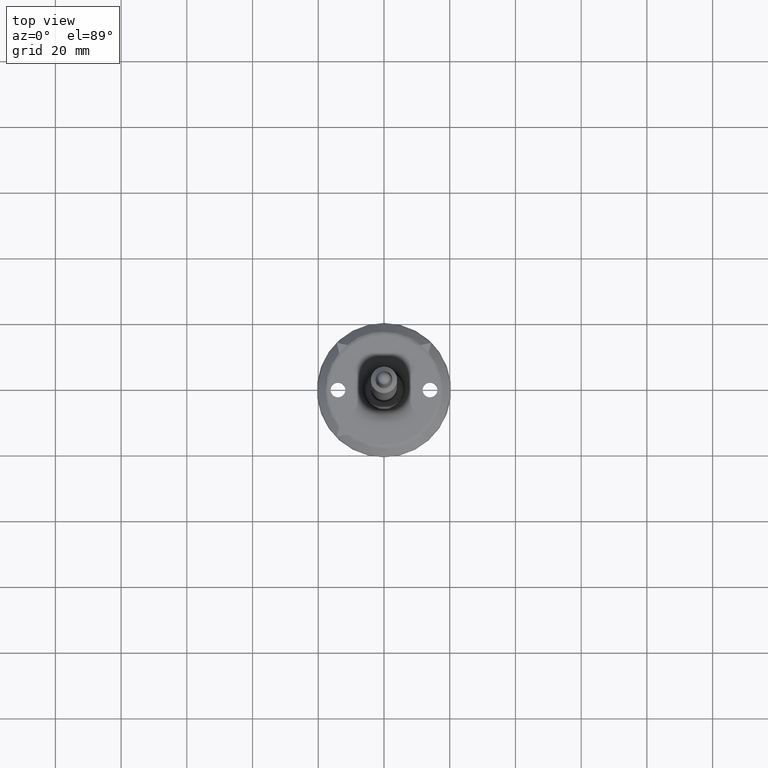
[diagram: clean part render]
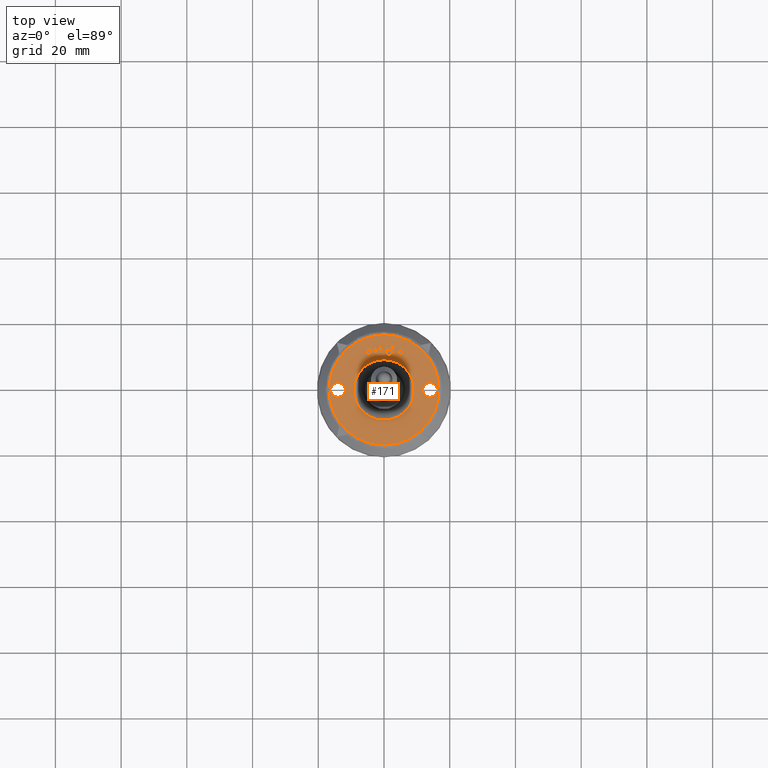
[diagram: same view with one face highlighted and labeled with its STEP entity id]
A machine part, top view. The second image highlights one B-rep face of the part: STEP entity #171.
In plain terms, the highlighted planar face has unit normal (0, -0, -1).
Its self-contained STEP definition (entity closure, byte-faithful):
#171 = ADVANCED_FACE( '', ( #294, #295, #296, #297, #298, #299, #300, #301, #302 ), #303, .F. );
#294 = FACE_BOUND( '', #582, .T. );
#295 = FACE_BOUND( '', #583, .T. );
#296 = FACE_BOUND( '', #584, .T. );
#297 = FACE_BOUND( '', #585, .T. );
#298 = FACE_OUTER_BOUND( '', #586, .T. );
#299 = FACE_BOUND( '', #587, .T. );
#300 = FACE_BOUND( '', #588, .T. );
#301 = FACE_BOUND( '', #589, .T. );
#302 = FACE_BOUND( '', #590, .T. );
#303 = PLANE( '', #591 );
#582 = EDGE_LOOP( '', ( #870, #871, #872, #873, #874, #875, #876, #877 ) );
#583 = EDGE_LOOP( '', ( #878, #879, #880, #881 ) );
#584 = EDGE_LOOP( '', ( #882 ) );
#585 = EDGE_LOOP( '', ( #883 ) );
#586 = EDGE_LOOP( '', ( #884 ) );
#587 = EDGE_LOOP( '', ( #885 ) );
#588 = EDGE_LOOP( '', ( #886, #887, #888, #889 ) );
#589 = EDGE_LOOP( '', ( #890, #891, #892, #893, #894, #895, #896 ) );
#590 = EDGE_LOOP( '', ( #897, #898, #899, #900, #901 ) );
#591 = AXIS2_PLACEMENT_3D( '', #902, #903, #904 );
#870 = ORIENTED_EDGE( '', *, *, #1774, .F. );
#871 = ORIENTED_EDGE( '', *, *, #1775, .F. );
#872 = ORIENTED_EDGE( '', *, *, #1776, .F. );
#873 = ORIENTED_EDGE( '', *, *, #1777, .F. );
#874 = ORIENTED_EDGE( '', *, *, #1778, .F. );
#875 = ORIENTED_EDGE( '', *, *, #1779, .F. );
#876 = ORIENTED_EDGE( '', *, *, #1780, .F. );
#877 = ORIENTED_EDGE( '', *, *, #1781, .F. );
#878 = ORIENTED_EDGE( '', *, *, #1782, .F. );
#879 = ORIENTED_EDGE( '', *, *, #1783, .F. );
#880 = ORIENTED_EDGE( '', *, *, #1784, .F. );
#881 = ORIENTED_EDGE( '', *, *, #1785, .F. );
#882 = ORIENTED_EDGE( '', *, *, #1786, .F. );
#883 = ORIENTED_EDGE( '', *, *, #1787, .T. );
#884 = ORIENTED_EDGE( '', *, *, #1788, .T. );
#885 = ORIENTED_EDGE( '', *, *, #1789, .F. );
#886 = ORIENTED_EDGE( '', *, *, #1790, .F. );
#887 = ORIENTED_EDGE( '', *, *, #1791, .F. );
#888 = ORIENTED_EDGE( '', *, *, #1792, .F. );
#889 = ORIENTED_EDGE( '', *, *, #1793, .F. );
#890 = ORIENTED_EDGE( '', *, *, #1794, .F. );
#891 = ORIENTED_EDGE( '', *, *, #1795, .F. );
#892 = ORIENTED_EDGE( '', *, *, #1796, .F. );
#893 = ORIENTED_EDGE( '', *, *, #1797, .F. );
#894 = ORIENTED_EDGE( '', *, *, #1798, .F. );
#895 = ORIENTED_EDGE( '', *, *, #1799, .F. );
#896 = ORIENTED_EDGE( '', *, *, #1800, .F. );
#897 = ORIENTED_EDGE( '', *, *, #1801, .F. );
#898 = ORIENTED_EDGE( '', *, *, #1802, .F. );
#899 = ORIENTED_EDGE( '', *, *, #1803, .F. );
#900 = ORIENTED_EDGE( '', *, *, #1804, .F. );
#901 = ORIENTED_EDGE( '', *, *, #1805, .F. );
#902 = CARTESIAN_POINT( '', ( 6.26367410396015, 1.30196443740726E-015, 4.99990699999999 ) );
#903 = DIRECTION( '', ( 1.12474554136660E-032, -1.83690953073357E-016, -1.00000000000000 ) );
#904 = DIRECTION( '', ( -6.12303176911189E-017, 1.00000000000000, -1.83690953073357E-016 ) );
#1774 = EDGE_CURVE( '', #2043, #2044, #2045, .F. );
#1775 = EDGE_CURVE( '', #2046, #2043, #2047, .T. );
#1776 = EDGE_CURVE( '', #2048, #2046, #2049, .T. );
#1777 = EDGE_CURVE( '', #2050, #2048, #2051, .T. );
#1778 = EDGE_CURVE( '', #2052, #2050, #2053, .T. );
#1779 = EDGE_CURVE( '', #2054, #2052, #2055, .T. );
#1780 = EDGE_CURVE( '', #2056, #2054, #2057, .T. );
#1781 = EDGE_CURVE( '', #2044, #2056, #2058, .T. );
#1782 = EDGE_CURVE( '', #2059, #2060, #2061, .T. );
#1783 = EDGE_CURVE( '', #2062, #2059, #2063, .T. );
#1784 = EDGE_CURVE( '', #2064, #2062, #2065, .T. );
#1785 = EDGE_CURVE( '', #2060, #2064, #2066, .T. );
#1786 = EDGE_CURVE( '', #2067, #2067, #2068, .F. );
#1787 = EDGE_CURVE( '', #2069, #2069, #2070, .T. );
#1788 = EDGE_CURVE( '', #2071, #2071, #2072, .F. );
#1789 = EDGE_CURVE( '', #2073, #2073, #2074, .F. );
#1790 = EDGE_CURVE( '', #2075, #2076, #2077, .T. );
#1791 = EDGE_CURVE( '', #2078, #2075, #2079, .T. );
#1792 = EDGE_CURVE( '', #2080, #2078, #2081, .T. );
#1793 = EDGE_CURVE( '', #2076, #2080, #2082, .T. );
#1794 = EDGE_CURVE( '', #2083, #2084, #2085, .T. );
#1795 = EDGE_CURVE( '', #2086, #2083, #2087, .T. );
#1796 = EDGE_CURVE( '', #2088, #2086, #2089, .T. );
#1797 = EDGE_CURVE( '', #2090, #2088, #2091, .T. );
#1798 = EDGE_CURVE( '', #2092, #2090, #2093, .T. );
#1799 = EDGE_CURVE( '', #2094, #2092, #2095, .T. );
#1800 = EDGE_CURVE( '', #2084, #2094, #2096, .T. );
#1801 = EDGE_CURVE( '', #2097, #2098, #2099, .T. );
#1802 = EDGE_CURVE( '', #2100, #2097, #2101, .T. );
#1803 = EDGE_CURVE( '', #2102, #2100, #2103, .T. );
#1804 = EDGE_CURVE( '', #2104, #2102, #2105, .T. );
#1805 = EDGE_CURVE( '', #2098, #2104, #2106, .T. );
#2043 = VERTEX_POINT( '', #2501 );
#2044 = VERTEX_POINT( '', #2502 );
#2045 = CIRCLE( '', #2503, 1.33440000000000 );
#2046 = VERTEX_POINT( '', #2504 );
#2047 = LINE( '', #2505, #2506 );
#2048 = VERTEX_POINT( '', #2507 );
#2049 = LINE( '', #2508, #2509 );
#2050 = VERTEX_POINT( '', #2510 );
#2051 = LINE( '', #2511, #2512 );
#2052 = VERTEX_POINT( '', #2513 );
#2053 = CIRCLE( '', #2514, 0.889599999999995 );
#2054 = VERTEX_POINT( '', #2515 );
#2055 = LINE( '', #2516, #2517 );
#2056 = VERTEX_POINT( '', #2518 );
#2057 = LINE( '', #2519, #2520 );
#2058 = LINE( '', #2521, #2522 );
#2059 = VERTEX_POINT( '', #2523 );
#2060 = VERTEX_POINT( '', #2524 );
#2061 = LINE( '', #2525, #2526 );
#2062 = VERTEX_POINT( '', #2527 );
#2063 = LINE( '', #2528, #2529 );
#2064 = VERTEX_POINT( '', #2530 );
#2065 = LINE( '', #2531, #2532 );
#2066 = LINE( '', #2533, #2534 );
#2067 = VERTEX_POINT( '', #2535 );
#2068 = CIRCLE( '', #2536, 2.25000000000001 );
#2069 = VERTEX_POINT( '', #2537 );
#2070 = CIRCLE( '', #2538, 9.20784984471370 );
#2071 = VERTEX_POINT( '', #2539 );
#2072 = CIRCLE( '', #2540, 16.7792036051656 );
#2073 = VERTEX_POINT( '', #2541 );
#2074 = CIRCLE( '', #2542, 2.25000000000000 );
#2075 = VERTEX_POINT( '', #2543 );
#2076 = VERTEX_POINT( '', #2544 );
#2077 = LINE( '', #2545, #2546 );
#2078 = VERTEX_POINT( '', #2547 );
#2079 = LINE( '', #2548, #2549 );
#2080 = VERTEX_POINT( '', #2550 );
#2081 = LINE( '', #2551, #2552 );
#2082 = LINE( '', #2553, #2554 );
#2083 = VERTEX_POINT( '', #2555 );
#2084 = VERTEX_POINT( '', #2556 );
#2085 = LINE( '', #2557, #2558 );
#2086 = VERTEX_POINT( '', #2559 );
#2087 = LINE( '', #2560, #2561 );
#2088 = VERTEX_POINT( '', #2562 );
#2089 = LINE( '', #2563, #2564 );
#2090 = VERTEX_POINT( '', #2565 );
#2091 = LINE( '', #2566, #2567 );
#2092 = VERTEX_POINT( '', #2568 );
#2093 = LINE( '', #2569, #2570 );
#2094 = VERTEX_POINT( '', #2571 );
#2095 = LINE( '', #2572, #2573 );
#2096 = LINE( '', #2574, #2575 );
#2097 = VERTEX_POINT( '', #2576 );
#2098 = VERTEX_POINT( '', #2577 );
#2099 = LINE( '', #2578, #2579 );
#2100 = VERTEX_POINT( '', #2580 );
#2101 = LINE( '', #2581, #2582 );
#2102 = VERTEX_POINT( '', #2583 );
#2103 = LINE( '', #2584, #2585 );
#2104 = VERTEX_POINT( '', #2586 );
#2105 = LINE( '', #2587, #2588 );
#2106 = LINE( '', #2589, #2590 );
#2501 = CARTESIAN_POINT( '', ( 4.28704891701152, 10.4994000000000, 4.99990699999999 ) );
#2502 = CARTESIAN_POINT( '', ( 5.62144891701152, 11.8338000000000, 4.99990699999999 ) );
#2503 = AXIS2_PLACEMENT_3D( '', #3291, #3292, #3293 );
#2504 = CARTESIAN_POINT( '', ( 2.88317879044305, 10.4994000000000, 4.99990699999999 ) );
#2505 = CARTESIAN_POINT( '', ( 6.26367410396015, 10.4994000000000, 4.99990699999999 ) );
#2506 = VECTOR( '', #3294, 1000.00000000000 );
#2507 = CARTESIAN_POINT( '', ( 3.11820689177645, 11.0811149637937, 4.99990699999999 ) );
#2508 = CARTESIAN_POINT( '', ( -0.289184012132563, 2.64752653307821, 4.99990699999999 ) );
#2509 = VECTOR( '', #3295, 1000.00000000000 );
#2510 = CARTESIAN_POINT( '', ( 3.68641509272283, 11.0811149637937, 4.99990699999999 ) );
#2511 = CARTESIAN_POINT( '', ( 6.26367410396015, 11.0811149637937, 4.99990699999999 ) );
#2512 = VECTOR( '', #3296, 1000.00000000000 );
#2513 = CARTESIAN_POINT( '', ( 4.57601509272282, 11.9707149637937, 4.99990699999999 ) );
#2514 = AXIS2_PLACEMENT_3D( '', #3297, #3298, #3299 );
#2515 = CARTESIAN_POINT( '', ( 4.57601509272282, 14.4996711815567, 4.99990699999999 ) );
#2516 = CARTESIAN_POINT( '', ( 4.57601509272282, 1.30109529971322E-015, 4.99990699999999 ) );
#2517 = VECTOR( '', #3300, 1000.00000000000 );
#2518 = CARTESIAN_POINT( '', ( 5.62144891701152, 14.4996711815567, 4.99990699999999 ) );
#2519 = CARTESIAN_POINT( '', ( 6.26367410396015, 14.4996711815567, 4.99990699999999 ) );
#2520 = VECTOR( '', #3301, 1000.00000000000 );
#2521 = CARTESIAN_POINT( '', ( 5.62144891701152, 1.30163369398437E-015, 4.99990699999999 ) );
#2522 = VECTOR( '', #3302, 1000.00000000000 );
#2523 = CARTESIAN_POINT( '', ( 0.302886043628969, 10.4994000000000, 4.99990699999999 ) );
#2524 = CARTESIAN_POINT( '', ( -1.31350139777566, 14.4996711815567, 4.99990699999999 ) );
#2525 = CARTESIAN_POINT( '', ( 4.78654673523565, -0.596862067544176, 4.99990699999999 ) );
#2526 = VECTOR( '', #3303, 1000.00000000000 );
#2527 = CARTESIAN_POINT( '', ( -0.730811096244652, 10.4994000000000, 4.99990699999999 ) );
#2528 = CARTESIAN_POINT( '', ( 6.26367410396015, 10.4994000000000, 4.99990699999999 ) );
#2529 = VECTOR( '', #3304, 1000.00000000000 );
#2530 = CARTESIAN_POINT( '', ( -2.34719853764928, 14.4996711815567, 4.99990699999999 ) );
#2531 = CARTESIAN_POINT( '', ( 3.89793511116535, -0.955922892234176, 4.99990699999999 ) );
#2532 = VECTOR( '', #3305, 1000.00000000000 );
#2533 = CARTESIAN_POINT( '', ( 6.26367410396015, 14.4996711815567, 4.99990699999999 ) );
#2534 = VECTOR( '', #3306, 1000.00000000000 );
#2535 = CARTESIAN_POINT( '', ( 14.0000000000000, 2.25000000000001, 4.99990699999999 ) );
#2536 = AXIS2_PLACEMENT_3D( '', #3307, #3308, #3309 );
#2537 = CARTESIAN_POINT( '', ( -5.63799571243939E-016, 9.20784984471370, 4.99990699999999 ) );
#2538 = AXIS2_PLACEMENT_3D( '', #3310, #3311, #3312 );
#2539 = CARTESIAN_POINT( '', ( -1.02739596734826E-015, 16.7792036051656, 4.99990699999998 ) );
#2540 = AXIS2_PLACEMENT_3D( '', #3313, #3314, #3315 );
#2541 = CARTESIAN_POINT( '', ( -14.0000000000000, 2.25000000000000, 4.99990699999999 ) );
#2542 = AXIS2_PLACEMENT_3D( '', #3316, #3317, #3318 );
#2543 = CARTESIAN_POINT( '', ( -1.47462014529466, 10.4994000000000, 4.99990699999999 ) );
#2544 = CARTESIAN_POINT( '', ( -3.09100758669929, 14.4996711815567, 4.99990699999999 ) );
#2545 = CARTESIAN_POINT( '', ( 3.25852406746708, -1.21428937141050, 4.99990699999999 ) );
#2546 = VECTOR( '', #3319, 1000.00000000000 );
#2547 = CARTESIAN_POINT( '', ( -2.50824376379507, 10.4994000000000, 4.99990699999999 ) );
#2548 = CARTESIAN_POINT( '', ( 6.26367410396015, 10.4994000000000, 4.99990699999999 ) );
#2549 = VECTOR( '', #3320, 1000.00000000000 );
#2550 = CARTESIAN_POINT( '', ( -4.12440395731886, 14.4996711815567, 4.99990699999999 ) );
#2551 = CARTESIAN_POINT( '', ( 2.36930922852980, -1.57337270526704, 4.99990699999999 ) );
#2552 = VECTOR( '', #3321, 1000.00000000000 );
#2553 = CARTESIAN_POINT( '', ( 6.26367410396015, 14.4996711815567, 4.99990699999999 ) );
#2554 = VECTOR( '', #3322, 1000.00000000000 );
#2555 = CARTESIAN_POINT( '', ( 2.13939647643785, 10.4994000000000, 4.99990699999999 ) );
#2556 = CARTESIAN_POINT( '', ( 3.75552993491683, 14.4996711815567, 4.99990699999999 ) );
#2557 = CARTESIAN_POINT( '', ( -0.928509667739326, 2.90568521618318, 4.99990699999999 ) );
#2558 = VECTOR( '', #3323, 1000.00000000000 );
#2559 = CARTESIAN_POINT( '', ( 1.04666835763417, 10.4994000000000, 4.99990699999999 ) );
#2560 = CARTESIAN_POINT( '', ( 6.26367410396015, 10.4994000000000, 4.99990699999999 ) );
#2561 = VECTOR( '', #3324, 1000.00000000000 );
#2562 = CARTESIAN_POINT( '', ( 0.223108669930024, 12.5374258330286, 4.99990699999999 ) );
#2563 = CARTESIAN_POINT( '', ( 5.42619726655374, -0.338421697849095, 4.99990699999999 ) );
#2564 = VECTOR( '', #3325, 1000.00000000000 );
#2565 = CARTESIAN_POINT( '', ( 0.739963923628041, 13.8169116073196, 4.99990699999999 ) );
#2566 = CARTESIAN_POINT( '', ( -3.28353860807383, 3.85664862207776, 4.99990699999999 ) );
#2567 = VECTOR( '', #3326, 1000.00000000000 );
#2568 = CARTESIAN_POINT( '', ( 1.59291879309559, 11.7058723669277, 4.99990699999999 ) );
#2569 = CARTESIAN_POINT( '', ( 6.31434582384371, 0.0204736555304223, 4.99990699999999 ) );
#2570 = VECTOR( '', #3327, 1000.00000000000 );
#2571 = CARTESIAN_POINT( '', ( 2.72181942752081, 14.4996711815567, 4.99990699999999 ) );
#2572 = CARTESIAN_POINT( '', ( -1.81763599354133, 3.26544490186125, 4.99990699999999 ) );
#2573 = VECTOR( '', #3328, 1000.00000000000 );
#2574 = CARTESIAN_POINT( '', ( 6.26367410396015, 14.4996711815567, 4.99990699999999 ) );
#2575 = VECTOR( '', #3329, 1000.00000000000 );
#2576 = CARTESIAN_POINT( '', ( -4.61880177338044, 10.4994000000000, 4.99990699999999 ) );
#2577 = CARTESIAN_POINT( '', ( -4.24524635983871, 11.4233096783808, 4.99990699999999 ) );
#2578 = CARTESIAN_POINT( '', ( -6.73840816755695, 5.25700545572004, 4.99990699999999 ) );
#2579 = VECTOR( '', #3330, 1000.00000000000 );
#2580 = CARTESIAN_POINT( '', ( -5.65219814400000, 10.4994000000000, 4.99990699999999 ) );
#2581 = CARTESIAN_POINT( '', ( 6.26367410396015, 10.4994000000000, 4.99990699999999 ) );
#2582 = VECTOR( '', #3331, 1000.00000000000 );
#2583 = CARTESIAN_POINT( '', ( -4.44055922966366, 13.4986977365248, 4.99990699999999 ) );
#2584 = CARTESIAN_POINT( '', ( -7.62682303370134, 5.61140251816718, 4.99990699999999 ) );
#2585 = VECTOR( '', #3332, 1000.00000000000 );
#2586 = CARTESIAN_POINT( '', ( -3.60243562630183, 11.4233096783808, 4.99990699999999 ) );
#2587 = CARTESIAN_POINT( '', ( 1.74730554373281, -1.82388786374384, 4.99990699999999 ) );
#2588 = VECTOR( '', #3333, 1000.00000000000 );
#2589 = CARTESIAN_POINT( '', ( 6.26367410396015, 11.4233096783808, 4.99990699999999 ) );
#2590 = VECTOR( '', #3334, 1000.00000000000 );
#3291 = CARTESIAN_POINT( '', ( 4.28704891701152, 11.8338000000000, 4.99990699999999 ) );
#3292 = DIRECTION( '', ( 1.12474554136660E-032, -1.83690953073357E-016, -1.00000000000000 ) );
#3293 = DIRECTION( '', ( 0.000000000000000, 1.00000000000000, -1.83690953073357E-016 ) );
#3294 = DIRECTION( '', ( 1.00000000000000, 6.12303176911189E-017, 0.000000000000000 ) );
#3295 = DIRECTION( '', ( -0.374606593415912, -0.927183854566787, 1.70315285919602E-016 ) );
#3296 = DIRECTION( '', ( -1.00000000000000, -6.12303176911189E-017, 0.000000000000000 ) );
#3297 = CARTESIAN_POINT( '', ( 3.68641509272283, 11.9707149637937, 4.99990699999999 ) );
#3298 = DIRECTION( '', ( 1.12474554136660E-032, -1.83690953073357E-016, -1.00000000000000 ) );
#3299 = DIRECTION( '', ( 0.000000000000000, 1.00000000000000, -1.83690953073357E-016 ) );
#3300 = DIRECTION( '', ( 5.14996031930612E-019, -1.00000000000000, 1.83690953073357E-016 ) );
#3301 = DIRECTION( '', ( -1.00000000000000, -6.12303176911189E-017, 0.000000000000000 ) );
#3302 = DIRECTION( '', ( -5.14996031930612E-019, 1.00000000000000, -1.83690953073357E-016 ) );
#3303 = DIRECTION( '', ( -0.374641058409019, 0.927169929060563, -1.70312727930091E-016 ) );
#3304 = DIRECTION( '', ( 1.00000000000000, -1.60814287233912E-016, 4.07875851034759E-032 ) );
#3305 = DIRECTION( '', ( 0.374641058409020, -0.927169929060563, 1.70312727930091E-016 ) );
#3306 = DIRECTION( '', ( -1.00000000000000, 1.60814287233912E-016, -4.07875851034759E-032 ) );
#3307 = CARTESIAN_POINT( '', ( 14.0000000000000, 9.18437682108146E-016, 4.99990699999999 ) );
#3308 = DIRECTION( '', ( 1.12474554136660E-032, -1.83690953073357E-016, -1.00000000000000 ) );
#3309 = DIRECTION( '', ( 0.000000000000000, 1.00000000000000, -1.83690953073357E-016 ) );
#3310 = CARTESIAN_POINT( '', ( -5.62362310549765E-032, 9.18437682108145E-016, 4.99990699999999 ) );
#3311 = DIRECTION( '', ( 1.12474554136660E-032, -1.83690953073357E-016, -1.00000000000000 ) );
#3312 = DIRECTION( '', ( -6.12303176911189E-017, 1.00000000000000, -1.83690953073357E-016 ) );
#3313 = CARTESIAN_POINT( '', ( -5.62362310549765E-032, 9.18437682108145E-016, 4.99990699999999 ) );
#3314 = DIRECTION( '', ( 1.12474554136660E-032, -1.83690953073357E-016, -1.00000000000000 ) );
#3315 = DIRECTION( '', ( -6.12303176911189E-017, 1.00000000000000, -1.83690953073357E-016 ) );
#3316 = CARTESIAN_POINT( '', ( -14.0000000000000, 9.18437682108146E-016, 4.99990699999999 ) );
#3317 = DIRECTION( '', ( 1.12474554136660E-032, -1.83690953073357E-016, -1.00000000000000 ) );
#3318 = DIRECTION( '', ( 0.000000000000000, 1.00000000000000, -1.83690953073357E-016 ) );
#3319 = DIRECTION( '', ( -0.374641058409020, 0.927169929060563, -1.70312727930091E-016 ) );
#3320 = DIRECTION( '', ( 1.00000000000000, 6.12303176911189E-017, 0.000000000000000 ) );
#3321 = DIRECTION( '', ( 0.374595778945159, -0.927188223823226, 1.70316088512481E-016 ) );
#3322 = DIRECTION( '', ( -1.00000000000000, -6.12303176911189E-017, 0.000000000000000 ) );
#3323 = DIRECTION( '', ( 0.374590451773198, 0.927190376050330, -1.70316483857129E-016 ) );
#3324 = DIRECTION( '', ( 1.00000000000000, 6.12303176911189E-017, 0.000000000000000 ) );
#3325 = DIRECTION( '', ( 0.374662832411421, -0.927161130553612, 1.70311111723964E-016 ) );
#3326 = DIRECTION( '', ( -0.374550179126525, -0.927206645422846, 1.70319472393672E-016 ) );
#3327 = DIRECTION( '', ( -0.374621565025663, 0.927177805503196, -1.70314174761345E-016 ) );
#3328 = DIRECTION( '', ( -0.374644435760503, -0.927168564368796, 1.70312477248560E-016 ) );
#3329 = DIRECTION( '', ( -1.00000000000000, -6.12303176911189E-017, 0.000000000000000 ) );
#3330 = DIRECTION( '', ( 0.374840934415178, 0.927089140205383, -1.70297887748286E-016 ) );
#3331 = DIRECTION( '', ( 1.00000000000000, 1.16741468922377E-016, -1.01968962758690E-032 ) );
#3332 = DIRECTION( '', ( -0.374565126786346, -0.927200607094025, 1.70318363207296E-016 ) );
#3333 = DIRECTION( '', ( -0.374457717202846, 0.927243990558706, -1.70326332357271E-016 ) );
#3334 = DIRECTION( '', ( 1.00000000000000, 6.12303176911189E-017, 0.000000000000000 ) );